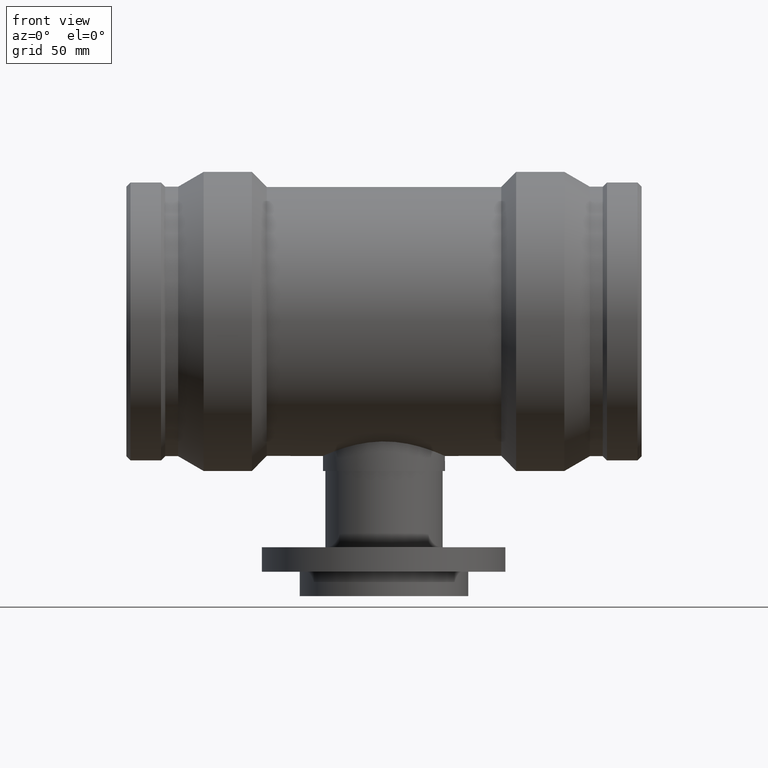
[diagram: clean part render]
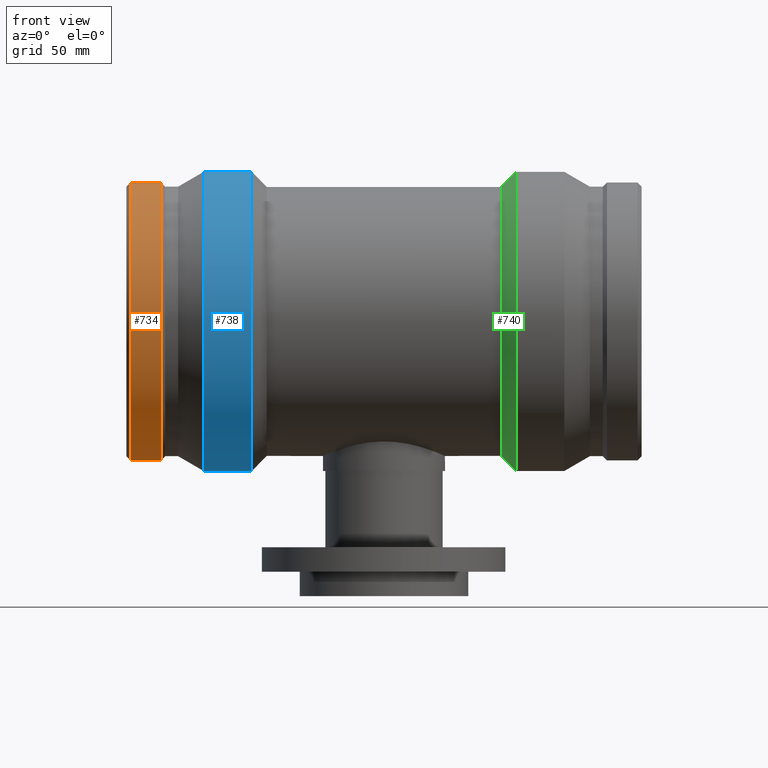
[diagram: same view with three faces highlighted in distinct colors, each labeled with its STEP entity id]
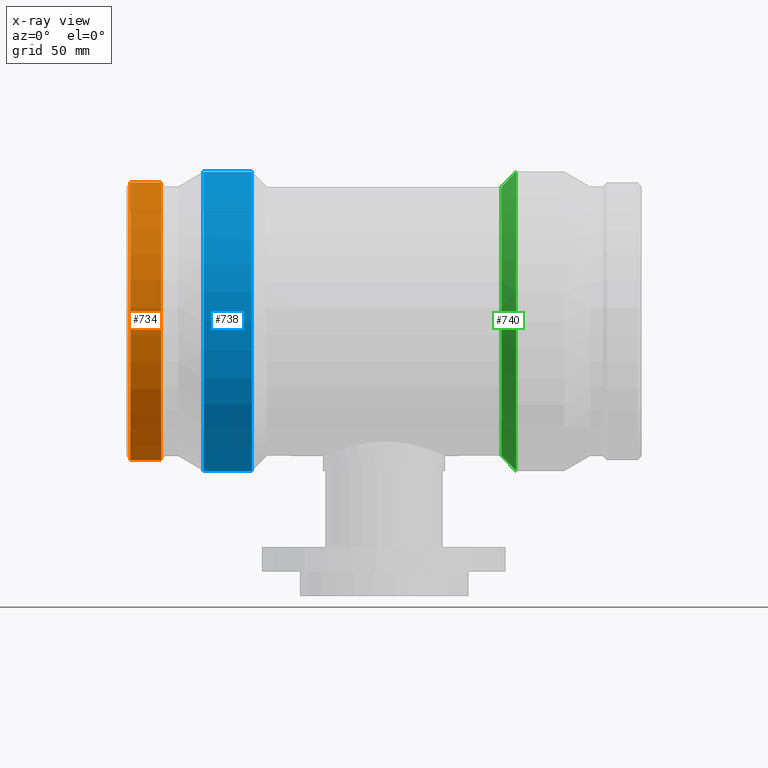
[diagram: x-ray of the same camera — body ghosted, the three highlighted faces saturated]
A machine part, front view with three faces highlighted in distinct colors.
The next image is the same camera in x-ray (body ghosted, the three faces saturated) — at least one of them is partly hidden behind the body in this view.
Their STEP definitions:

[orange] entity #734 — the highlighted cylindrical surface (bore or boss wall) has radius 113.925 mm, axis along (1, 0, 0).
#93=FACE_BOUND('',#360,.T.);
#94=FACE_BOUND('',#361,.T.);
#161=CIRCLE('',#835,113.925);
#162=CIRCLE('',#837,113.925);
#204=CYLINDRICAL_SURFACE('',#836,113.925);
#250=FACE_OUTER_BOUND('',#359,.T.);
#359=EDGE_LOOP('',(#645));
#360=EDGE_LOOP('',(#646));
#361=EDGE_LOOP('',(#647));
#418=B_SPLINE_CURVE_WITH_KNOTS('',3,(#1615,#1616,#1617,#1618,#1619,#1620,
#1621,#1622,#1623,#1624,#1625,#1626,#1627,#1628,#1629,#1630,#1631,#1632,
#1633,#1634,#1635,#1636,#1637,#1638,#1639,#1640,#1641,#1642,#1643,#1644,
#1645,#1646,#1647,#1648),.UNSPECIFIED.,.T.,.F.,(4,2,2,2,2,2,2,2,2,2,2,2,
2,2,2,2,4),(0.,0.289976652309075,0.57995330461815,0.869733199695018,1.15951309477189,
1.44929298984875,1.73907288492562,2.0290495372347,2.31902618954377,2.60900284185285,
2.89897949416192,3.18875938923879,3.47853928431566,3.76831917939252,4.05809907446939,
4.34807572677847,4.63805237908754),.UNSPECIFIED.);
#461=VERTEX_POINT('',#1614);
#464=VERTEX_POINT('',#1655);
#465=VERTEX_POINT('',#1658);
#531=EDGE_CURVE('',#461,#461,#418,.T.);
#534=EDGE_CURVE('',#464,#464,#161,.T.);
#535=EDGE_CURVE('',#465,#465,#162,.T.);
#645=ORIENTED_EDGE('',*,*,#534,.T.);
#646=ORIENTED_EDGE('',*,*,#531,.T.);
#647=ORIENTED_EDGE('',*,*,#535,.F.);
#734=ADVANCED_FACE('',(#250,#93,#94),#204,.T.);
#835=AXIS2_PLACEMENT_3D('',#1656,#1035,#1036);
#836=AXIS2_PLACEMENT_3D('',#1657,#1037,#1038);
#837=AXIS2_PLACEMENT_3D('',#1659,#1039,#1040);
#1035=DIRECTION('center_axis',(1.,0.,0.));
#1036=DIRECTION('ref_axis',(0.,0.,-1.));
#1037=DIRECTION('center_axis',(1.,0.,0.));
#1038=DIRECTION('ref_axis',(0.,1.,0.));
#1039=DIRECTION('center_axis',(1.,0.,0.));
#1040=DIRECTION('ref_axis',(0.,0.,-1.));
#1614=CARTESIAN_POINT('',(-195.1,113.664191865101,-7.70435673197531));
#1615=CARTESIAN_POINT('Ctrl Pts',(-195.1,113.664191865101,-7.70435673197531));
#1616=CARTESIAN_POINT('Ctrl Pts',(-194.13341115897,113.664191865101,-7.70435673197531));
#1617=CARTESIAN_POINT('Ctrl Pts',(-193.10293485479,113.677872986196,-7.51018105522845));
#1618=CARTESIAN_POINT('Ctrl Pts',(-191.208700800041,113.727214126636,-6.72178490893874));
#1619=CARTESIAN_POINT('Ctrl Pts',(-190.344910399783,113.76215572232,-6.12759808731818));
#1620=CARTESIAN_POINT('Ctrl Pts',(-188.982455214489,113.82763425459,-4.75863167702574));
#1621=CARTESIAN_POINT('Ctrl Pts',(-188.39263053027,113.862425668092,-3.89272059660754));
#1622=CARTESIAN_POINT('Ctrl Pts',(-187.610633192907,113.911455606152,-1.99638029116836));
#1623=CARTESIAN_POINT('Ctrl Pts',(-187.418461023184,113.925,-0.96593298358956));
#1624=CARTESIAN_POINT('Ctrl Pts',(-187.418461023184,113.925,0.96593298358956));
#1625=CARTESIAN_POINT('Ctrl Pts',(-187.610633192907,113.911455606152,1.99638029116836));
#1626=CARTESIAN_POINT('Ctrl Pts',(-188.39263053027,113.862425668092,3.89272059660754));
#1627=CARTESIAN_POINT('Ctrl Pts',(-188.982455214489,113.82763425459,4.75863167702574));
#1628=CARTESIAN_POINT('Ctrl Pts',(-190.344910399783,113.76215572232,6.12759808731819));
#1629=CARTESIAN_POINT('Ctrl Pts',(-191.208700800042,113.727214126636,6.72178490893878));
#1630=CARTESIAN_POINT('Ctrl Pts',(-193.102934854791,113.677872986196,7.51018105522848));
#1631=CARTESIAN_POINT('Ctrl Pts',(-194.13341115897,113.664191865101,7.7043567319753));
#1632=CARTESIAN_POINT('Ctrl Pts',(-196.06658884103,113.664191865101,7.7043567319753));
#1633=CARTESIAN_POINT('Ctrl Pts',(-197.09706514521,113.677872986196,7.51018105522845));
#1634=CARTESIAN_POINT('Ctrl Pts',(-198.991299199959,113.727214126636,6.72178490893874));
#1635=CARTESIAN_POINT('Ctrl Pts',(-199.855089600217,113.76215572232,6.12759808731818));
#1636=CARTESIAN_POINT('Ctrl Pts',(-201.217544785511,113.82763425459,4.75863167702574));
#1637=CARTESIAN_POINT('Ctrl Pts',(-201.80736946973,113.862425668092,3.89272059660754));
#1638=CARTESIAN_POINT('Ctrl Pts',(-202.589366807093,113.911455606152,1.99638029116835));
#1639=CARTESIAN_POINT('Ctrl Pts',(-202.781538976816,113.925,0.96593298358956));
#1640=CARTESIAN_POINT('Ctrl Pts',(-202.781538976816,113.925,-0.965932983589559));
#1641=CARTESIAN_POINT('Ctrl Pts',(-202.589366807093,113.911455606152,-1.99638029116835));
#1642=CARTESIAN_POINT('Ctrl Pts',(-201.80736946973,113.862425668092,-3.89272059660754));
#1643=CARTESIAN_POINT('Ctrl Pts',(-201.217544785511,113.82763425459,-4.75863167702574));
#1644=CARTESIAN_POINT('Ctrl Pts',(-199.855089600217,113.76215572232,-6.12759808731818));
#1645=CARTESIAN_POINT('Ctrl Pts',(-198.991299199959,113.727214126636,-6.72178490893874));
#1646=CARTESIAN_POINT('Ctrl Pts',(-197.09706514521,113.677872986196,-7.51018105522845));
#1647=CARTESIAN_POINT('Ctrl Pts',(-196.06658884103,113.664191865101,-7.70435673197531));
#1648=CARTESIAN_POINT('Ctrl Pts',(-195.1,113.664191865101,-7.70435673197531));
#1655=CARTESIAN_POINT('',(-207.58225,113.925,0.));
#1656=CARTESIAN_POINT('Origin',(-207.58225,0.,0.));
#1657=CARTESIAN_POINT('Origin',(-195.1,0.,0.));
#1658=CARTESIAN_POINT('',(-182.61775,113.925,0.));
#1659=CARTESIAN_POINT('Origin',(-182.61775,0.,0.));

[blue] entity #738 — the highlighted cylindrical surface (bore or boss wall) has radius 122.5 mm, axis along (1, 0, 0).
#98=FACE_BOUND('',#369,.T.);
#165=CIRCLE('',#843,122.5);
#166=CIRCLE('',#845,122.5);
#206=CYLINDRICAL_SURFACE('',#844,122.5);
#254=FACE_OUTER_BOUND('',#368,.T.);
#368=EDGE_LOOP('',(#654));
#369=EDGE_LOOP('',(#655));
#468=VERTEX_POINT('',#1667);
#469=VERTEX_POINT('',#1670);
#538=EDGE_CURVE('',#468,#468,#165,.T.);
#539=EDGE_CURVE('',#469,#469,#166,.T.);
#654=ORIENTED_EDGE('',*,*,#538,.T.);
#655=ORIENTED_EDGE('',*,*,#539,.F.);
#738=ADVANCED_FACE('',(#254,#98),#206,.T.);
#843=AXIS2_PLACEMENT_3D('',#1668,#1051,#1052);
#844=AXIS2_PLACEMENT_3D('',#1669,#1053,#1054);
#845=AXIS2_PLACEMENT_3D('',#1671,#1055,#1056);
#1051=DIRECTION('center_axis',(1.,0.,0.));
#1052=DIRECTION('ref_axis',(0.,0.,-1.));
#1053=DIRECTION('center_axis',(1.,0.,0.));
#1054=DIRECTION('ref_axis',(0.,1.,0.));
#1055=DIRECTION('center_axis',(1.,0.,0.));
#1056=DIRECTION('ref_axis',(0.,0.,-1.));
#1667=CARTESIAN_POINT('',(-147.7,122.5,0.));
#1668=CARTESIAN_POINT('Origin',(-147.7,0.,0.));
#1669=CARTESIAN_POINT('Origin',(-127.9775,0.,0.));
#1670=CARTESIAN_POINT('',(-108.255,122.5,0.));
#1671=CARTESIAN_POINT('Origin',(-108.255,0.,0.));

[green] entity #740 — the highlighted conical surface has half-angle 45 deg.
#22=CONICAL_SURFACE('',#847,116.375,45.);
#100=FACE_BOUND('',#373,.T.);
#147=CIRCLE('',#807,110.25);
#167=CIRCLE('',#848,122.5);
#256=FACE_OUTER_BOUND('',#372,.T.);
#372=EDGE_LOOP('',(#658));
#373=EDGE_LOOP('',(#659));
#448=VERTEX_POINT('',#1543);
#470=VERTEX_POINT('',#1674);
#518=EDGE_CURVE('',#448,#448,#147,.T.);
#540=EDGE_CURVE('',#470,#470,#167,.T.);
#658=ORIENTED_EDGE('',*,*,#518,.T.);
#659=ORIENTED_EDGE('',*,*,#540,.F.);
#740=ADVANCED_FACE('',(#256,#100),#22,.T.);
#807=AXIS2_PLACEMENT_3D('',#1544,#979,#980);
#847=AXIS2_PLACEMENT_3D('',#1673,#1059,#1060);
#848=AXIS2_PLACEMENT_3D('',#1675,#1061,#1062);
#979=DIRECTION('center_axis',(1.,0.,0.));
#980=DIRECTION('ref_axis',(0.,0.,-1.));
#1059=DIRECTION('center_axis',(1.,0.,0.));
#1060=DIRECTION('ref_axis',(0.,1.,0.));
#1061=DIRECTION('center_axis',(1.,0.,0.));
#1062=DIRECTION('ref_axis',(0.,0.,-1.));
#1543=CARTESIAN_POINT('',(96.005,110.25,0.));
#1544=CARTESIAN_POINT('Origin',(96.005,0.,0.));
#1673=CARTESIAN_POINT('Origin',(102.13,0.,0.));
#1674=CARTESIAN_POINT('',(108.255,122.5,0.));
#1675=CARTESIAN_POINT('Origin',(108.255,0.,0.));